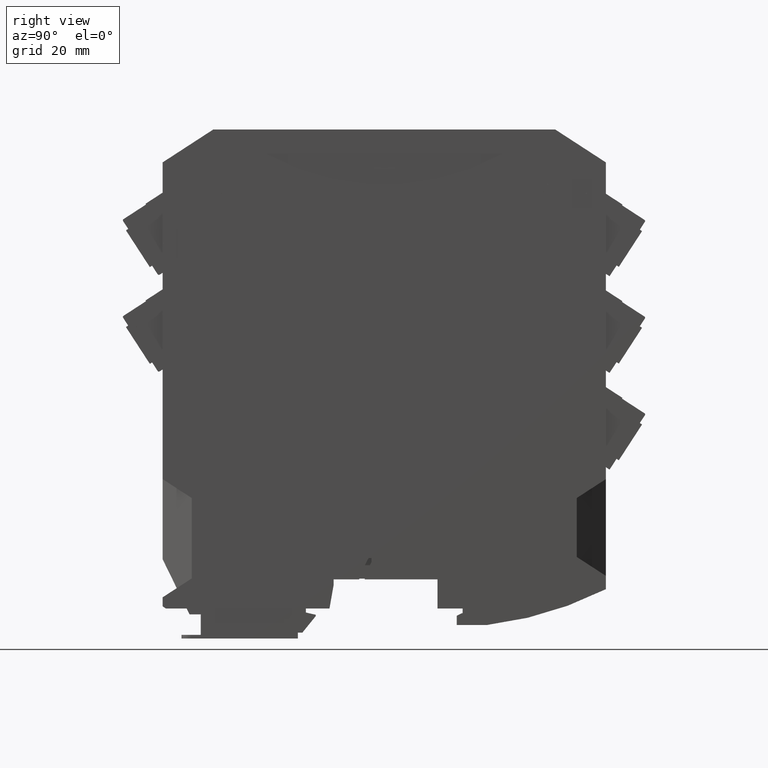
[diagram: clean part render]
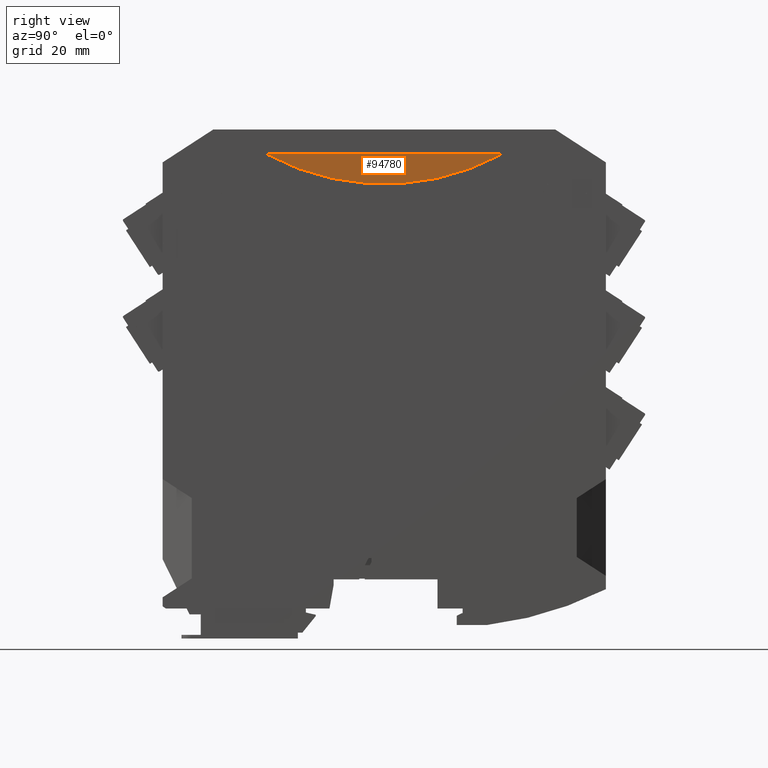
[diagram: same view with one face highlighted and labeled with its STEP entity id]
A machine part, right view. The second image highlights one B-rep face of the part: STEP entity #94780.
In plain terms, the highlighted planar face has unit normal (1, -0, -0).
Its self-contained STEP definition (entity closure, byte-faithful):
#94130=CARTESIAN_POINT('',(12.3999992223139,75.8499500002824,
108.249999999994));
#94140=VERTEX_POINT('',#94130);
#94170=CARTESIAN_POINT('',(12.3999992223139,16.8702257341715,
108.249999999997));
#94180=DIRECTION('',(-1.13632427452536E-31,1.,-4.97572203083267E-14));
#94190=VECTOR('',#94180,1.);
#94200=LINE('',#94170,#94190);
#94210=CARTESIAN_POINT('',(12.3999992223139,23.1552602197185,
108.249999999997));
#94220=VERTEX_POINT('',#94210);
#94230=EDGE_CURVE('',#94220,#94140,#94200,.T.);
#94470=CARTESIAN_POINT('',(12.3999992223139,49.5000000002872,
104.849999999959));
#94480=DIRECTION('',(1.,-5.21592700555424E-36,-2.28384227807285E-18));
#94490=DIRECTION('',(-4.191076862855E-30,1.,-1.83510136361891E-12));
#94500=AXIS2_PLACEMENT_3D('',#94470,#94480,#94490);
#94510=PLANE('',#94500);
#94520=ORIENTED_EDGE('',*,*,#94230,.F.);
#94530=CARTESIAN_POINT('',(12.3999992223139,49.5000000003095,
87.6631628058867));
#94540=DIRECTION('',(-1.40607370632767E-18,-0.788010753607329,
-0.615661475324882));
#94550=VECTOR('',#94540,1.);
#94560=LINE('',#94530,#94550);
#94570=CARTESIAN_POINT('',(12.3999992223139,75.7980109545857,
108.209420770137));
#94580=VERTEX_POINT('',#94570);
#94590=EDGE_CURVE('',#94140,#94580,#94560,.T.);
#94600=ORIENTED_EDGE('',*,*,#94590,.F.);
#94610=CARTESIAN_POINT('',(12.3999992223139,49.5000000003042,
156.393092299507));
#94620=DIRECTION('',(-1.,5.21592700555424E-36,2.28384227807285E-18));
#94630=DIRECTION('',(-1.13593727821452E-31,-1.,-4.97357076646706E-14));
#94640=AXIS2_PLACEMENT_3D('',#94610,#94620,#94630);
#94650=CIRCLE('',#94640,54.8930922995028);
#94660=CARTESIAN_POINT('',(12.3999992223139,23.2192573012937,
108.199999999986));
#94670=VERTEX_POINT('',#94660);
#94680=EDGE_CURVE('',#94580,#94670,#94650,.T.);
#94690=ORIENTED_EDGE('',*,*,#94680,.F.);
#94700=CARTESIAN_POINT('',(12.3999992223139,49.5000000003095,
87.6672334752794));
#94710=DIRECTION('',(1.40607370633292E-18,-0.788010753605531,
0.615661475327183));
#94720=VECTOR('',#94710,1.);
#94730=LINE('',#94700,#94720);
#94740=EDGE_CURVE('',#94670,#94220,#94730,.T.);
#94750=ORIENTED_EDGE('',*,*,#94740,.F.);
#94760=EDGE_LOOP('',(#94750,#94690,#94600,#94520));
#94770=FACE_OUTER_BOUND('',#94760,.T.);
#94780=ADVANCED_FACE('',(#94770),#94510,.T.);